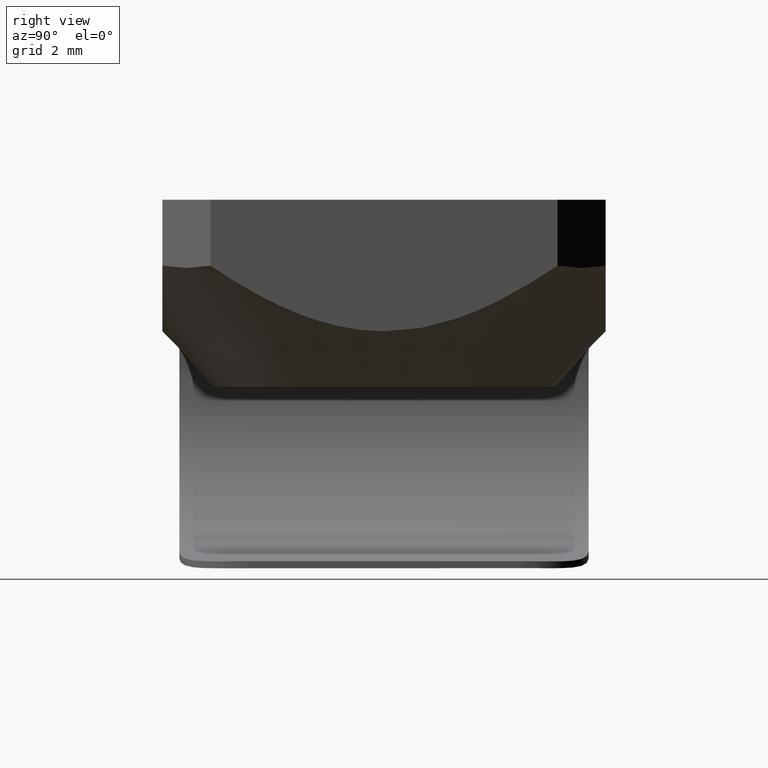
[diagram: clean part render]
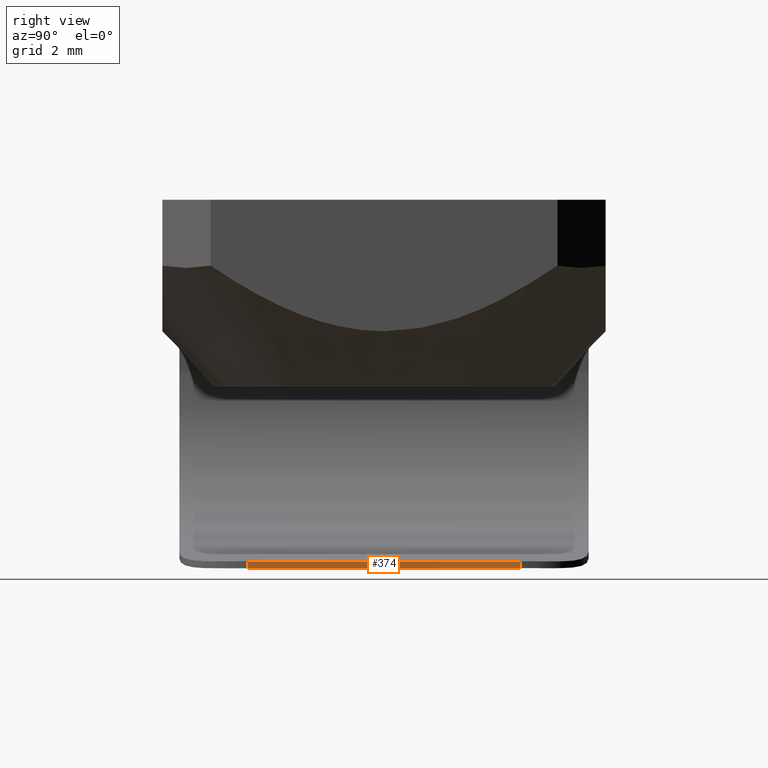
[diagram: same view with one face highlighted and labeled with its STEP entity id]
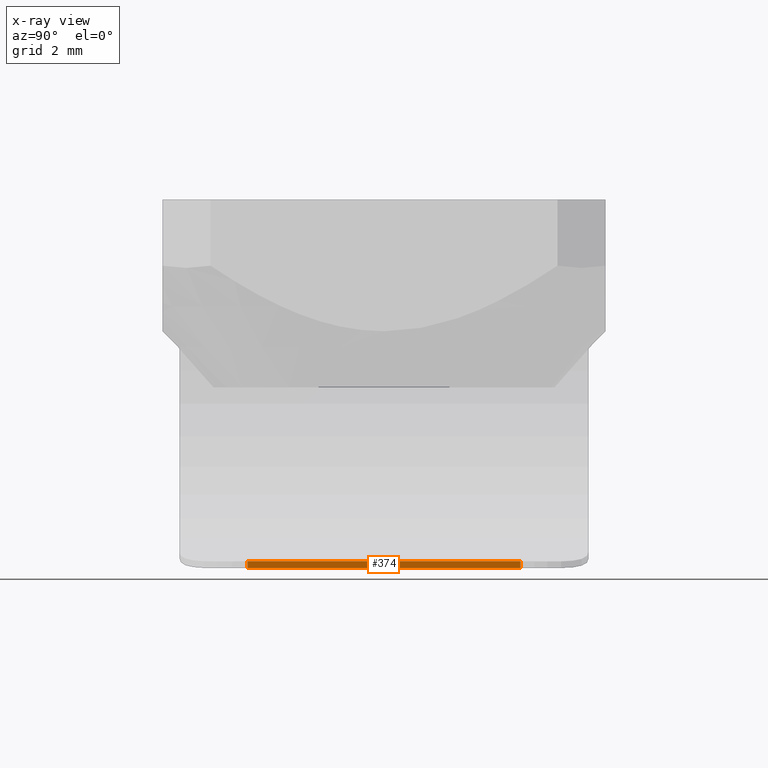
[diagram: x-ray of the same camera — body ghosted, the highlighted face saturated]
A machine part, right view. The second image highlights one B-rep face of the part: STEP entity #374.
The next image is the same camera in x-ray: the body ghosted, the highlighted face saturated — about 0% of this face is hidden behind the body in this view.
In plain terms, the highlighted planar face has unit normal (1, -0, 0).
Its self-contained STEP definition (entity closure, byte-faithful):
#4 = EDGE_CURVE ( 'NONE', #115, #319, #650, .T. ) ;
#13 = EDGE_CURVE ( 'NONE', #314, #319, #247, .T. ) ;
#39 = DIRECTION ( 'NONE',  ( -0.0000000000000000000, -0.0000000000000000000, 1.000000000000000000 ) ) ;
#87 = CARTESIAN_POINT ( 'NONE',  ( -0.8999999999990927479, 0.0000000000000000000, -10.80000000000000426 ) ) ;
#110 = VECTOR ( 'NONE', #782, 1000.000000000000000 ) ;
#115 = VERTEX_POINT ( 'NONE', #191 ) ;
#155 = DIRECTION ( 'NONE',  ( 0.0000000000000000000, 0.0000000000000000000, -1.000000000000000000 ) ) ;
#191 = CARTESIAN_POINT ( 'NONE',  ( -0.8999999999990927479, 4.000000000000000888, -10.60000000000000142 ) ) ;
#210 = CARTESIAN_POINT ( 'NONE',  ( -0.8999999999990923039, -4.000000000000000888, -10.80000000000000426 ) ) ;
#239 = ORIENTED_EDGE ( 'NONE', *, *, #13, .F. ) ;
#247 = LINE ( 'NONE', #862, #578 ) ;
#273 = ORIENTED_EDGE ( 'NONE', *, *, #292, .F. ) ;
#292 = EDGE_CURVE ( 'NONE', #634, #314, #865, .T. ) ;
#299 = LINE ( 'NONE', #413, #697 ) ;
#314 = VERTEX_POINT ( 'NONE', #210 ) ;
#319 = VERTEX_POINT ( 'NONE', #677 ) ;
#330 = ORIENTED_EDGE ( 'NONE', *, *, #345, .T. ) ;
#345 = EDGE_CURVE ( 'NONE', #634, #115, #299, .T. ) ;
#363 = FACE_OUTER_BOUND ( 'NONE', #834, .T. ) ;
#369 = CARTESIAN_POINT ( 'NONE',  ( -0.8999999999990930810, 0.0000000000000000000, -10.80000000000000071 ) ) ;
#374 = ADVANCED_FACE ( 'NONE', ( #363 ), #698, .T. ) ;
#413 = CARTESIAN_POINT ( 'NONE',  ( -0.8999999999990930810, 4.000000000000000888, -10.80000000000000071 ) ) ;
#500 = ORIENTED_EDGE ( 'NONE', *, *, #4, .T. ) ;
#578 = VECTOR ( 'NONE', #39, 1000.000000000000000 ) ;
#634 = VERTEX_POINT ( 'NONE', #676 ) ;
#650 = LINE ( 'NONE', #713, #110 ) ;
#676 = CARTESIAN_POINT ( 'NONE',  ( -0.8999999999990929700, 4.000000000000000888, -10.80000000000000426 ) ) ;
#677 = CARTESIAN_POINT ( 'NONE',  ( -0.8999999999990929700, -4.000000000000000888, -10.60000000000000142 ) ) ;
#697 = VECTOR ( 'NONE', #892, 1000.000000000000000 ) ;
#698 = PLANE ( 'NONE',  #827 ) ;
#713 = CARTESIAN_POINT ( 'NONE',  ( -0.8999999999990937471, 0.0000000000000000000, -10.60000000000000142 ) ) ;
#782 = DIRECTION ( 'NONE',  ( -0.0000000000000000000, -1.000000000000000000, -0.0000000000000000000 ) ) ;
#785 = VECTOR ( 'NONE', #837, 1000.000000000000000 ) ;
#827 = AXIS2_PLACEMENT_3D ( 'NONE', #369, #840, #155 ) ;
#834 = EDGE_LOOP ( 'NONE', ( #239, #273, #330, #500 ) ) ;
#837 = DIRECTION ( 'NONE',  ( -0.0000000000000000000, -1.000000000000000000, -0.0000000000000000000 ) ) ;
#840 = DIRECTION ( 'NONE',  ( 1.000000000000000000, -0.0000000000000000000, 0.0000000000000000000 ) ) ;
#862 = CARTESIAN_POINT ( 'NONE',  ( -0.8999999999990920818, -4.000000000000000888, -8.605752313873143322 ) ) ;
#865 = LINE ( 'NONE', #87, #785 ) ;
#892 = DIRECTION ( 'NONE',  ( -0.0000000000000000000, -0.0000000000000000000, 1.000000000000000000 ) ) ;